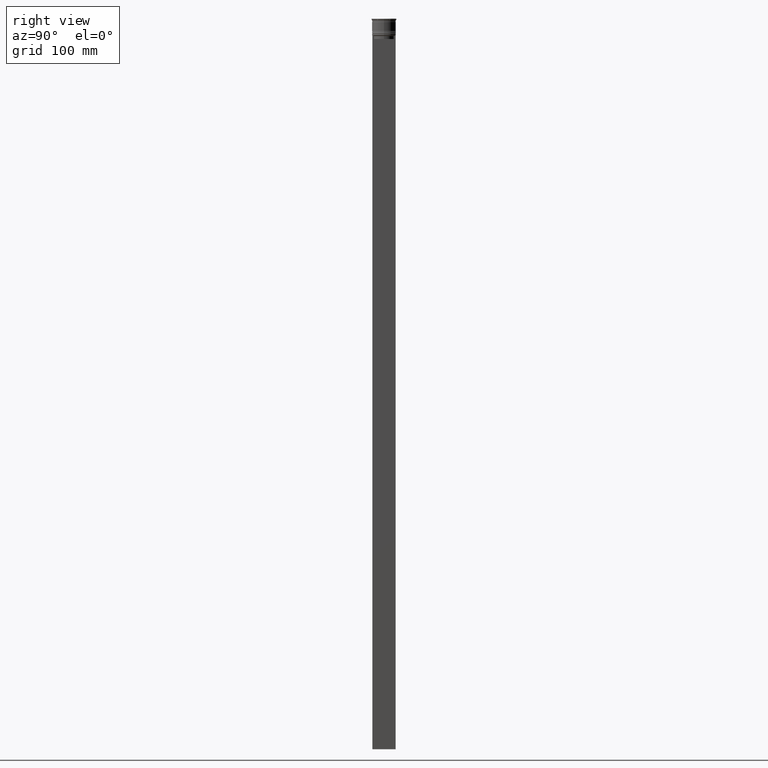
[diagram: clean part render]
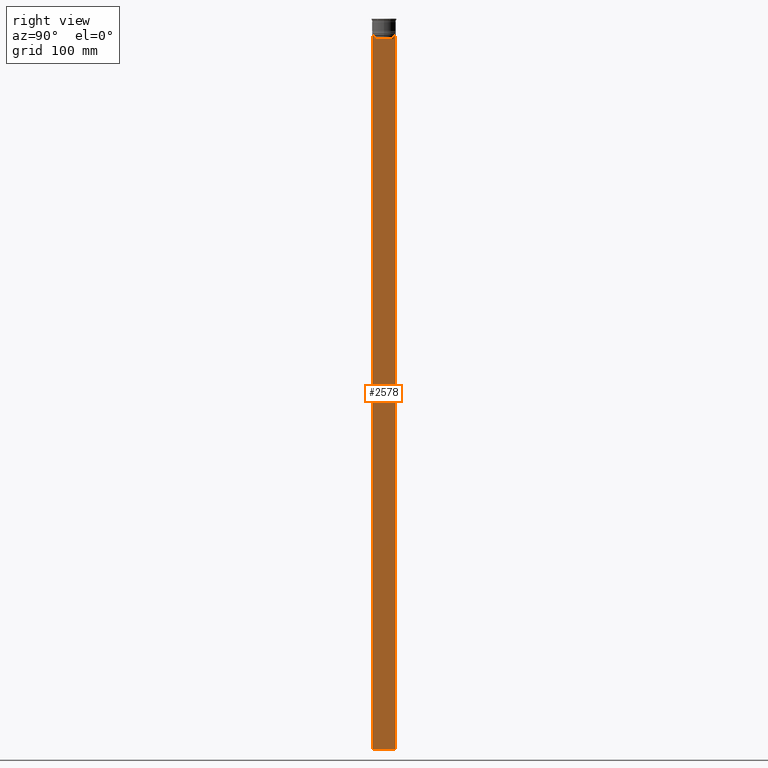
[diagram: same view with one face highlighted and labeled with its STEP entity id]
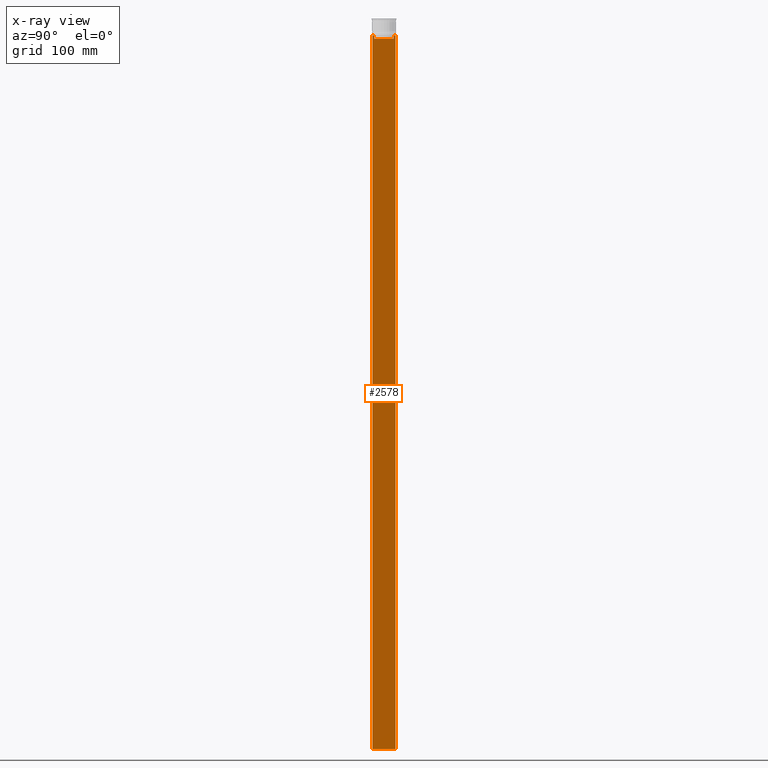
[diagram: x-ray of the same camera — body ghosted, the highlighted face saturated]
A machine part, right view. The second image highlights one B-rep face of the part: STEP entity #2578.
The next image is the same camera in x-ray: the body ghosted, the highlighted face saturated — about 0% of this face is hidden behind the body in this view.
In plain terms, the highlighted planar face has unit normal (-1, 0, 0).
Its self-contained STEP definition (entity closure, byte-faithful):
#36 = CARTESIAN_POINT ( 'NONE',  ( 0.4999999999999998890, 8.885943956609230199, -14.00000000000000178 ) ) ;
#62 = EDGE_CURVE ( 'NONE', #1296, #1195, #2294, .T. ) ;
#67 = CARTESIAN_POINT ( 'NONE',  ( 0.4999999999999998890, 8.552060201981378285, -14.33334167021640582 ) ) ;
#93 = VECTOR ( 'NONE', #238, 1000.000000000000000 ) ;
#152 = CARTESIAN_POINT ( 'NONE',  ( 0.4999999999999998890, 8.385105843100616241, -14.50000000000000000 ) ) ;
#154 = CARTESIAN_POINT ( 'NONE',  ( 0.4999999999999998890, -9.749999999999998224, -614.0000000000000000 ) ) ;
#193 = CARTESIAN_POINT ( 'NONE',  ( 0.4999999999999998890, -9.749999999999998224, -14.00000000000000178 ) ) ;
#235 = EDGE_CURVE ( 'NONE', #1387, #376, #1627, .T. ) ;
#238 = DIRECTION ( 'NONE',  ( 0.000000000000000000, -1.000000000000000000, 0.000000000000000000 ) ) ;
#266 = LINE ( 'NONE', #2097, #1485 ) ;
#271 = LINE ( 'NONE', #1285, #1312 ) ;
#303 = ORIENTED_EDGE ( 'NONE', *, *, #1868, .T. ) ;
#318 = EDGE_CURVE ( 'NONE', #2192, #1387, #271, .T. ) ;
#347 = VERTEX_POINT ( 'NONE', #1255 ) ;
#372 = VECTOR ( 'NONE', #1721, 1000.000000000000000 ) ;
#376 = VERTEX_POINT ( 'NONE', #694 ) ;
#426 = ORIENTED_EDGE ( 'NONE', *, *, #235, .T. ) ;
#432 = DIRECTION ( 'NONE',  ( 0.000000000000000000, 0.000000000000000000, -1.000000000000000000 ) ) ;
#559 = VECTOR ( 'NONE', #1586, 1000.000000000000000 ) ;
#583 = ORIENTED_EDGE ( 'NONE', *, *, #318, .T. ) ;
#600 = CARTESIAN_POINT ( 'NONE',  ( 0.4999999999999998890, -9.749999999999998224, -14.00000000000000178 ) ) ;
#602 = ORIENTED_EDGE ( 'NONE', *, *, #2104, .T. ) ;
#608 = B_SPLINE_CURVE_WITH_KNOTS ( 'NONE', 3,
 ( #36, #1264, #67, #839 ),
 .UNSPECIFIED., .F., .F.,
 ( 4, 4 ),
 ( 0.01511546479386908018, 0.01582316445439079997 ),
 .UNSPECIFIED. ) ;
#694 = CARTESIAN_POINT ( 'NONE',  ( 0.4999999999999998890, -8.385105843100616241, -17.00000000000000000 ) ) ;
#738 = ORIENTED_EDGE ( 'NONE', *, *, #1029, .T. ) ;
#755 = PLANE ( 'NONE',  #2353 ) ;
#783 = DIRECTION ( 'NONE',  ( 0.000000000000000000, 0.000000000000000000, 1.000000000000000000 ) ) ;
#795 = CARTESIAN_POINT ( 'NONE',  ( 0.4999999999999998890, -9.749999999999998224, -14.00000000000000178 ) ) ;
#830 = CARTESIAN_POINT ( 'NONE',  ( 0.4999999999999998890, 8.400000000000003908, -17.00000000000000000 ) ) ;
#833 = VERTEX_POINT ( 'NONE', #2115 ) ;
#839 = CARTESIAN_POINT ( 'NONE',  ( 0.4999999999999998890, 8.385105843100616241, -14.50000000000000000 ) ) ;
#955 = ORIENTED_EDGE ( 'NONE', *, *, #2471, .F. ) ;
#985 = CARTESIAN_POINT ( 'NONE',  ( 0.4999999999999998890, 8.385105843100616241, -17.00000000000000000 ) ) ;
#992 = LINE ( 'NONE', #1213, #559 ) ;
#1022 = VECTOR ( 'NONE', #1457, 1000.000000000000000 ) ;
#1029 = EDGE_CURVE ( 'NONE', #833, #1116, #1924, .T. ) ;
#1034 = ORIENTED_EDGE ( 'NONE', *, *, #1502, .T. ) ;
#1038 = DIRECTION ( 'NONE',  ( 0.000000000000000000, -1.000000000000000000, 0.000000000000000000 ) ) ;
#1055 = VECTOR ( 'NONE', #1038, 1000.000000000000000 ) ;
#1116 = VERTEX_POINT ( 'NONE', #2228 ) ;
#1122 = EDGE_CURVE ( 'NONE', #1995, #347, #1247, .T. ) ;
#1132 = VERTEX_POINT ( 'NONE', #795 ) ;
#1158 = CARTESIAN_POINT ( 'NONE',  ( 0.4999999999999998890, -8.552060194457768105, -14.33334167772667556 ) ) ;
#1165 = CARTESIAN_POINT ( 'NONE',  ( 0.4999999999999998890, -9.749999999999998224, 5.525624189766635830 ) ) ;
#1195 = VERTEX_POINT ( 'NONE', #1315 ) ;
#1213 = CARTESIAN_POINT ( 'NONE',  ( 0.4999999999999998890, -8.385105843100616241, 0.000000000000000000 ) ) ;
#1247 = LINE ( 'NONE', #193, #2176 ) ;
#1255 = CARTESIAN_POINT ( 'NONE',  ( 0.4999999999999998890, 8.885943956609230199, -14.00000000000000178 ) ) ;
#1264 = CARTESIAN_POINT ( 'NONE',  ( 0.4999999999999998890, 8.719005771582347464, -14.16667453442325453 ) ) ;
#1285 = CARTESIAN_POINT ( 'NONE',  ( 0.4999999999999998890, 8.385105843100616241, 0.000000000000000000 ) ) ;
#1296 = VERTEX_POINT ( 'NONE', #2311 ) ;
#1312 = VECTOR ( 'NONE', #1693, 1000.000000000000000 ) ;
#1315 = CARTESIAN_POINT ( 'NONE',  ( 0.4999999999999998890, 9.750000000000001776, -614.0000000000000000 ) ) ;
#1347 = CARTESIAN_POINT ( 'NONE',  ( 0.4999999999999998890, -8.385105843100616241, -14.50000000000000000 ) ) ;
#1387 = VERTEX_POINT ( 'NONE', #985 ) ;
#1410 = ORIENTED_EDGE ( 'NONE', *, *, #1574, .T. ) ;
#1457 = DIRECTION ( 'NONE',  ( 0.000000000000000000, 0.000000000000000000, -1.000000000000000000 ) ) ;
#1468 = LINE ( 'NONE', #2473, #1022 ) ;
#1485 = VECTOR ( 'NONE', #432, 1000.000000000000000 ) ;
#1502 = EDGE_CURVE ( 'NONE', #1116, #1132, #2225, .T. ) ;
#1559 = DIRECTION ( 'NONE',  ( -1.000000000000000000, 0.000000000000000000, 0.000000000000000000 ) ) ;
#1574 = EDGE_CURVE ( 'NONE', #1132, #1296, #1468, .T. ) ;
#1586 = DIRECTION ( 'NONE',  ( -0.000000000000000000, -0.000000000000000000, 1.000000000000000000 ) ) ;
#1590 = FACE_OUTER_BOUND ( 'NONE', #2061, .T. ) ;
#1627 = LINE ( 'NONE', #830, #1055 ) ;
#1693 = DIRECTION ( 'NONE',  ( 0.000000000000000000, 0.000000000000000000, -1.000000000000000000 ) ) ;
#1721 = DIRECTION ( 'NONE',  ( 0.000000000000000000, 1.000000000000000000, 0.000000000000000000 ) ) ;
#1795 = DIRECTION ( 'NONE',  ( 0.000000000000000000, -1.000000000000000000, 0.000000000000000000 ) ) ;
#1823 = CARTESIAN_POINT ( 'NONE',  ( 0.4999999999999998890, -8.885943956609230199, -14.00000000000000178 ) ) ;
#1868 = EDGE_CURVE ( 'NONE', #376, #833, #992, .T. ) ;
#1888 = CARTESIAN_POINT ( 'NONE',  ( 0.4999999999999998890, 9.750000000000001776, -14.00000000000000178 ) ) ;
#1924 = B_SPLINE_CURVE_WITH_KNOTS ( 'NONE', 3,
 ( #1347, #1158, #2026, #1823 ),
 .UNSPECIFIED., .F., .F.,
 ( 4, 4 ),
 ( 0.03898465126933130243, 0.03969388910599658260 ),
 .UNSPECIFIED. ) ;
#1995 = VERTEX_POINT ( 'NONE', #1888 ) ;
#2026 = CARTESIAN_POINT ( 'NONE',  ( 0.4999999999999998890, -8.719005764482787413, -14.16667454151160044 ) ) ;
#2061 = EDGE_LOOP ( 'NONE', ( #2514, #602, #583, #426, #303, #738, #1034, #1410, #2331, #955 ) ) ;
#2097 = CARTESIAN_POINT ( 'NONE',  ( 0.4999999999999998890, 9.750000000000001776, 5.525624189766635830 ) ) ;
#2104 = EDGE_CURVE ( 'NONE', #347, #2192, #608, .T. ) ;
#2115 = CARTESIAN_POINT ( 'NONE',  ( 0.4999999999999998890, -8.385105843100616241, -14.50000000000000000 ) ) ;
#2176 = VECTOR ( 'NONE', #1795, 1000.000000000000000 ) ;
#2192 = VERTEX_POINT ( 'NONE', #152 ) ;
#2225 = LINE ( 'NONE', #600, #93 ) ;
#2228 = CARTESIAN_POINT ( 'NONE',  ( 0.4999999999999998890, -8.885943956609230199, -14.00000000000000178 ) ) ;
#2294 = LINE ( 'NONE', #154, #372 ) ;
#2311 = CARTESIAN_POINT ( 'NONE',  ( 0.4999999999999998890, -9.749999999999998224, -614.0000000000000000 ) ) ;
#2331 = ORIENTED_EDGE ( 'NONE', *, *, #62, .T. ) ;
#2353 = AXIS2_PLACEMENT_3D ( 'NONE', #1165, #1559, #783 ) ;
#2471 = EDGE_CURVE ( 'NONE', #1995, #1195, #266, .T. ) ;
#2473 = CARTESIAN_POINT ( 'NONE',  ( 0.4999999999999998890, -9.749999999999998224, 5.525624189766635830 ) ) ;
#2514 = ORIENTED_EDGE ( 'NONE', *, *, #1122, .T. ) ;
#2578 = ADVANCED_FACE ( 'NONE', ( #1590 ), #755, .F. ) ;